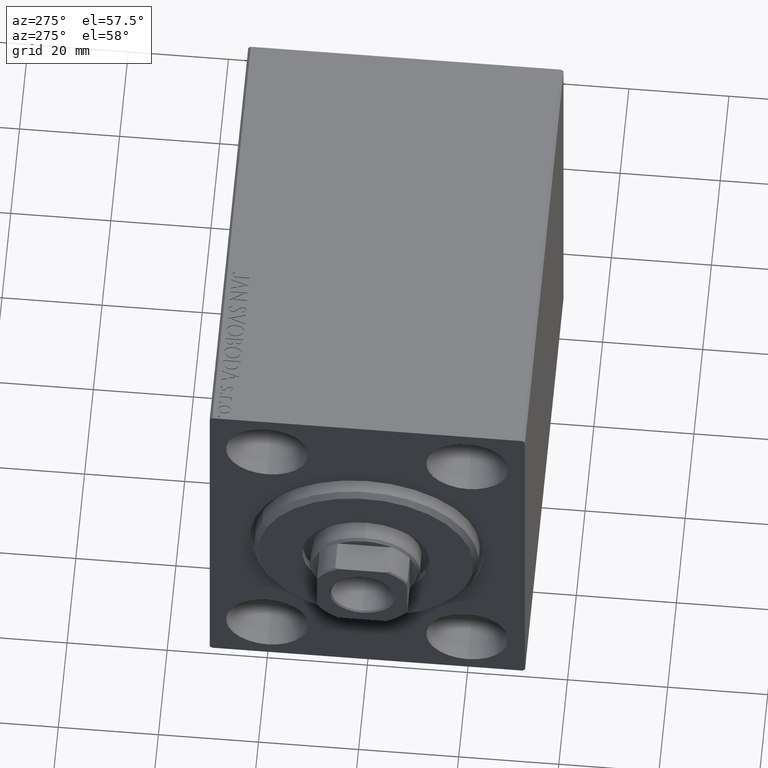
[diagram: clean part render]
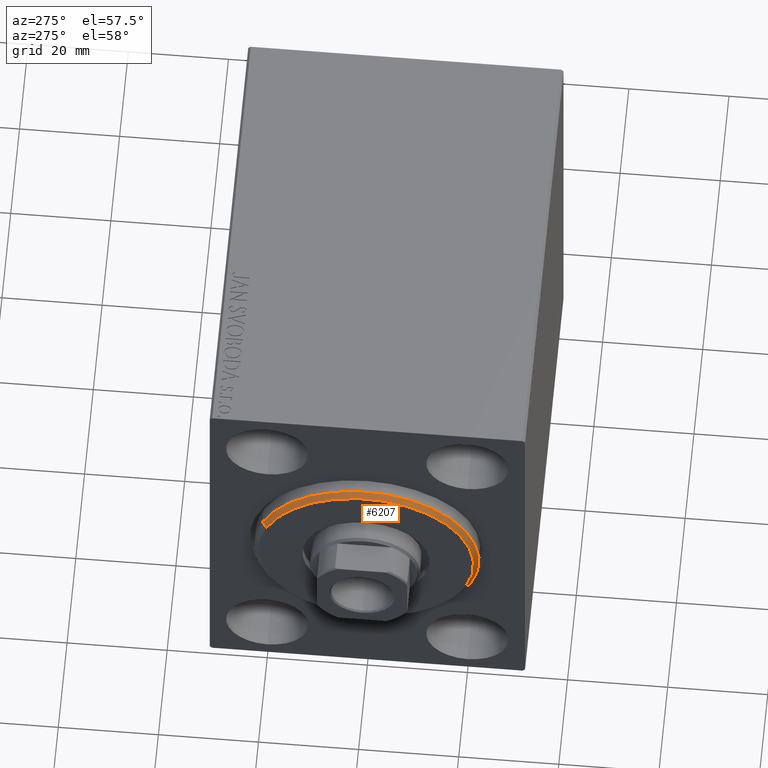
[diagram: same view with one face highlighted and labeled with its STEP entity id]
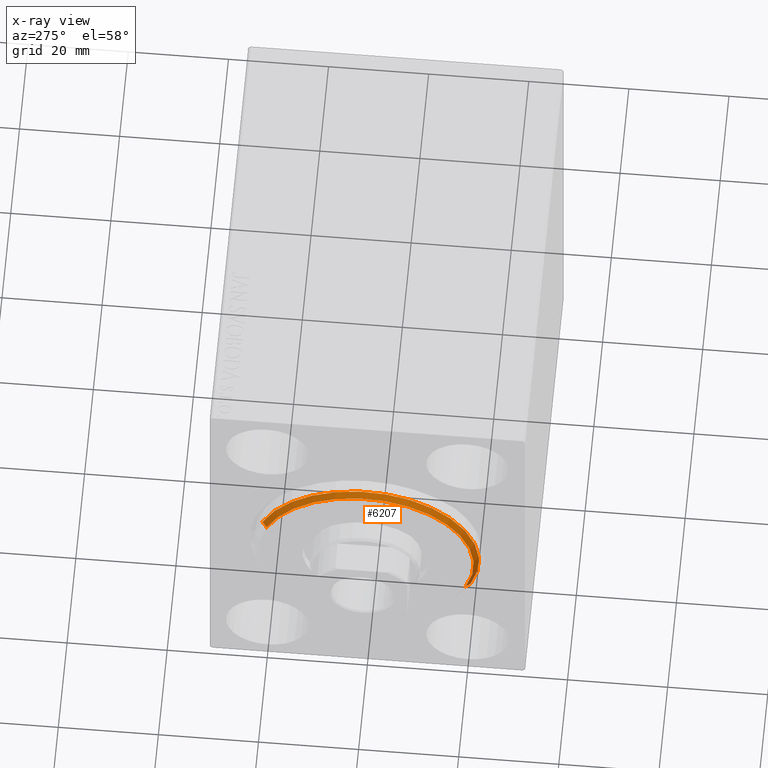
[diagram: x-ray of the same camera — body ghosted, the highlighted face saturated]
A machine part, auxiliary view. The second image highlights one B-rep face of the part: STEP entity #6207.
The next image is the same camera in x-ray: the body ghosted, the highlighted face saturated — about 0% of this face is hidden behind the body in this view.
In plain terms, the highlighted conical surface has half-angle 45 deg.
Its self-contained STEP definition (entity closure, byte-faithful):
#218 = VECTOR ( 'NONE', #12087, 1000.000000000000000 ) ;
#756 = ORIENTED_EDGE ( 'NONE', *, *, #2314, .F. ) ;
#2133 = ORIENTED_EDGE ( 'NONE', *, *, #42167, .T. ) ;
#2314 = EDGE_CURVE ( 'NONE', #37720, #4487, #7104, .T. ) ;
#3742 = VERTEX_POINT ( 'NONE', #25967 ) ;
#3973 = LINE ( 'NONE', #41340, #39656 ) ;
#4193 = CIRCLE ( 'NONE', #6321, 21.50000000000000355 ) ;
#4487 = VERTEX_POINT ( 'NONE', #25444 ) ;
#5900 = CARTESIAN_POINT ( 'NONE',  ( 1.999999999999999112, 0.000000000000000000, 0.000000000000000000 ) ) ;
#6207 = ADVANCED_FACE ( 'NONE', ( #15782 ), #24154, .T. ) ;
#6321 = AXIS2_PLACEMENT_3D ( 'NONE', #31605, #41172, #40746 ) ;
#6382 = CARTESIAN_POINT ( 'NONE',  ( 3.000000000000000000, 0.000000000000000000, 21.50000000000000355 ) ) ;
#7104 = CIRCLE ( 'NONE', #18463, 22.50000000000000355 ) ;
#8893 = DIRECTION ( 'NONE',  ( -1.000000000000000000, 0.000000000000000000, 0.000000000000000000 ) ) ;
#9672 = DIRECTION ( 'NONE',  ( 0.000000000000000000, 0.000000000000000000, -1.000000000000000000 ) ) ;
#9761 = CARTESIAN_POINT ( 'NONE',  ( 3.000000000000000000, 0.000000000000000000, 0.000000000000000000 ) ) ;
#11661 = CARTESIAN_POINT ( 'NONE',  ( 3.000000000000000000, 0.000000000000000000, 21.50000000000000355 ) ) ;
#12087 = DIRECTION ( 'NONE',  ( -0.7071067811865487940, 0.000000000000000000, 0.7071067811865463515 ) ) ;
#13491 = AXIS2_PLACEMENT_3D ( 'NONE', #9761, #8893, #16654 ) ;
#15782 = FACE_OUTER_BOUND ( 'NONE', #18488, .T. ) ;
#16654 = DIRECTION ( 'NONE',  ( 0.000000000000000000, 0.000000000000000000, 1.000000000000000000 ) ) ;
#18463 = AXIS2_PLACEMENT_3D ( 'NONE', #5900, #26352, #9672 ) ;
#18488 = EDGE_LOOP ( 'NONE', ( #28621, #36508, #2133, #756 ) ) ;
#20419 = EDGE_CURVE ( 'NONE', #3742, #37720, #3973, .T. ) ;
#20924 = EDGE_CURVE ( 'NONE', #21276, #3742, #4193, .T. ) ;
#21276 = VERTEX_POINT ( 'NONE', #6382 ) ;
#21700 = CARTESIAN_POINT ( 'NONE',  ( 1.999999999999999112, 2.755455298081545172E-15, -22.50000000000000355 ) ) ;
#24154 = CONICAL_SURFACE ( 'NONE', #13491, 21.50000000000000355, 0.7853981633974466137 ) ;
#25444 = CARTESIAN_POINT ( 'NONE',  ( 1.999999999999999112, 0.000000000000000000, 22.50000000000000355 ) ) ;
#25967 = CARTESIAN_POINT ( 'NONE',  ( 3.000000000000000000, 2.694222958124177598E-15, -21.50000000000000355 ) ) ;
#26352 = DIRECTION ( 'NONE',  ( -1.000000000000000000, 0.000000000000000000, 0.000000000000000000 ) ) ;
#28621 = ORIENTED_EDGE ( 'NONE', *, *, #20419, .F. ) ;
#31605 = CARTESIAN_POINT ( 'NONE',  ( 3.000000000000000000, 0.000000000000000000, 0.000000000000000000 ) ) ;
#36508 = ORIENTED_EDGE ( 'NONE', *, *, #20924, .F. ) ;
#37128 = DIRECTION ( 'NONE',  ( -0.7071067811865487940, 8.659560562354919300E-17, -0.7071067811865463515 ) ) ;
#37720 = VERTEX_POINT ( 'NONE', #21700 ) ;
#39656 = VECTOR ( 'NONE', #37128, 1000.000000000000000 ) ;
#40746 = DIRECTION ( 'NONE',  ( 0.000000000000000000, 0.000000000000000000, -1.000000000000000000 ) ) ;
#41172 = DIRECTION ( 'NONE',  ( 1.000000000000000000, -0.000000000000000000, 0.000000000000000000 ) ) ;
#41340 = CARTESIAN_POINT ( 'NONE',  ( 3.000000000000000000, 2.632990618166810024E-15, -21.50000000000000355 ) ) ;
#42138 = LINE ( 'NONE', #11661, #218 ) ;
#42167 = EDGE_CURVE ( 'NONE', #21276, #4487, #42138, .T. ) ;